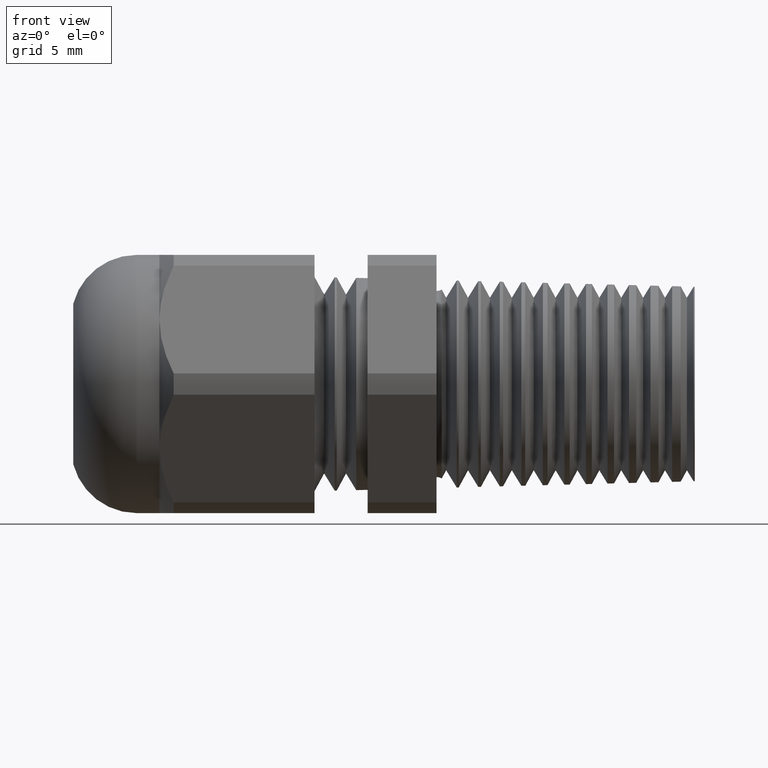
[diagram: clean part render]
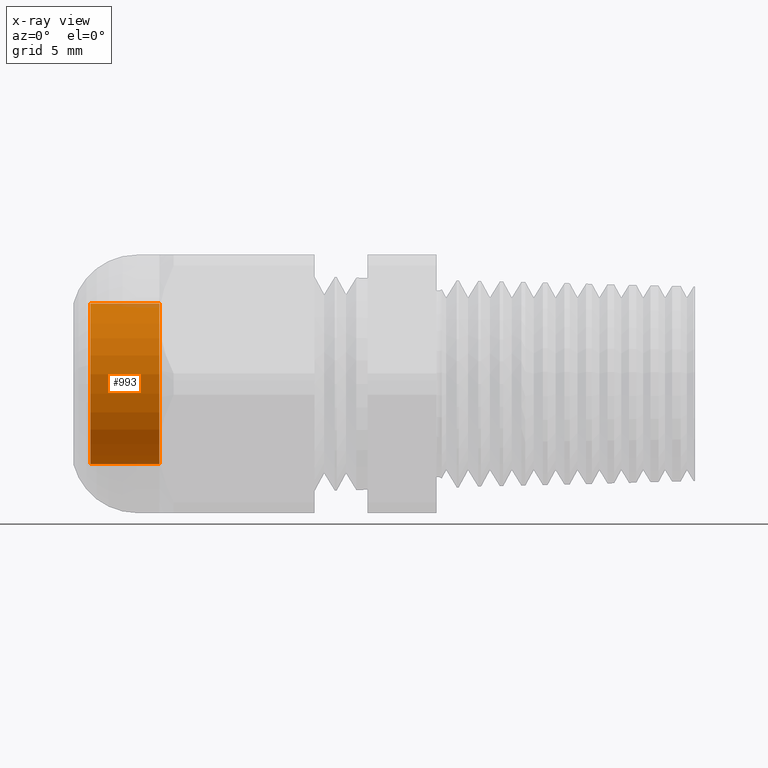
[diagram: x-ray — body ghosted, one internal face saturated and labeled with its STEP entity id]
A machine part, front view, then the same camera in x-ray: the body is ghosted and one INTERNAL B-rep face — a face not visible from any outside direction — is saturated and labeled: STEP entity #993.
In plain terms, the highlighted cylindrical surface (partial cylindrical patch) has radius 4.6672 mm, axis along (1, 0, 0).
Its self-contained STEP definition (entity closure, byte-faithful):
#913 = EDGE_CURVE ( 'NONE', #967, #914, #2933, .T. ) ;
#914 = VERTEX_POINT ( 'NONE', #2929 ) ;
#917 = VERTEX_POINT ( 'NONE', #2923 ) ;
#967 = VERTEX_POINT ( 'NONE', #3036 ) ;
#986 = VERTEX_POINT ( 'NONE', #3067 ) ;
#988 = EDGE_CURVE ( 'NONE', #914, #917, #3066, .T. ) ;
#993 = ADVANCED_FACE ( 'NONE', ( #3056 ), #3055, .T. ) ;
#994 = EDGE_LOOP ( 'NONE', ( #995, #996, #998, #999 ) ) ;
#995 = ORIENTED_EDGE ( 'NONE', *, *, #913, .F. ) ;
#996 = ORIENTED_EDGE ( 'NONE', *, *, #997, .T. ) ;
#997 = EDGE_CURVE ( 'NONE', #967, #986, #3049, .T. ) ;
#998 = ORIENTED_EDGE ( 'NONE', *, *, #1060, .T. ) ;
#999 = ORIENTED_EDGE ( 'NONE', *, *, #988, .F. ) ;
#1060 = EDGE_CURVE ( 'NONE', #986, #917, #3199, .T. ) ;
#2923 = CARTESIAN_POINT ( 'NONE',  ( -0.9431496062992125200, 0.0000000000000000000, -0.1837500000000000000 ) ) ;
#2929 = CARTESIAN_POINT ( 'NONE',  ( -0.9431496062992125200, 2.250288493433261500E-017, 0.1837500000000000000 ) ) ;
#2930 = DIRECTION ( 'NONE',  ( 1.000000000000000000, 0.0000000000000000000, 0.0000000000000000000 ) ) ;
#2931 = VECTOR ( 'NONE', #2930, 39.37007874015748100 ) ;
#2932 = CARTESIAN_POINT ( 'NONE',  ( 0.0000000000000000000, 2.250288493433261500E-017, 0.1837500000000000000 ) ) ;
#2933 = LINE ( 'NONE', #2932, #2931 ) ;
#3036 = CARTESIAN_POINT ( 'NONE',  ( -1.101000000000000000, 2.250288493433261500E-017, 0.1837500000000000000 ) ) ;
#3046 = DIRECTION ( 'NONE',  ( 0.0000000000000000000, 0.0000000000000000000, -1.000000000000000000 ) ) ;
#3047 = DIRECTION ( 'NONE',  ( 1.000000000000000000, 0.0000000000000000000, 0.0000000000000000000 ) ) ;
#3048 = AXIS2_PLACEMENT_3D ( 'NONE', #3054, #3047, #3046 ) ;
#3049 = CIRCLE ( 'NONE', #3048, 0.1837500000000000000 ) ;
#3050 = DIRECTION ( 'NONE',  ( 0.0000000000000000000, 0.0000000000000000000, -1.000000000000000000 ) ) ;
#3051 = DIRECTION ( 'NONE',  ( 1.000000000000000000, 0.0000000000000000000, 0.0000000000000000000 ) ) ;
#3052 = CARTESIAN_POINT ( 'NONE',  ( 0.0000000000000000000, 0.0000000000000000000, 0.0000000000000000000 ) ) ;
#3053 = AXIS2_PLACEMENT_3D ( 'NONE', #3052, #3051, #3050 ) ;
#3054 = CARTESIAN_POINT ( 'NONE',  ( -1.101000000000000000, 0.0000000000000000000, 0.0000000000000000000 ) ) ;
#3055 = CYLINDRICAL_SURFACE ( 'NONE', #3053, 0.1837500000000000000 ) ;
#3056 = FACE_OUTER_BOUND ( 'NONE', #994, .T. ) ;
#3062 = DIRECTION ( 'NONE',  ( 0.0000000000000000000, 0.0000000000000000000, -1.000000000000000000 ) ) ;
#3063 = DIRECTION ( 'NONE',  ( 1.000000000000000000, 0.0000000000000000000, 0.0000000000000000000 ) ) ;
#3064 = CARTESIAN_POINT ( 'NONE',  ( -0.9431496062992125200, 0.0000000000000000000, 0.0000000000000000000 ) ) ;
#3065 = AXIS2_PLACEMENT_3D ( 'NONE', #3064, #3063, #3062 ) ;
#3066 = CIRCLE ( 'NONE', #3065, 0.1837500000000000000 ) ;
#3067 = CARTESIAN_POINT ( 'NONE',  ( -1.101000000000000000, 0.0000000000000000000, -0.1837500000000000000 ) ) ;
#3196 = DIRECTION ( 'NONE',  ( 1.000000000000000000, 0.0000000000000000000, 0.0000000000000000000 ) ) ;
#3197 = VECTOR ( 'NONE', #3196, 39.37007874015748100 ) ;
#3198 = CARTESIAN_POINT ( 'NONE',  ( 0.0000000000000000000, 0.0000000000000000000, -0.1837500000000000000 ) ) ;
#3199 = LINE ( 'NONE', #3198, #3197 ) ;